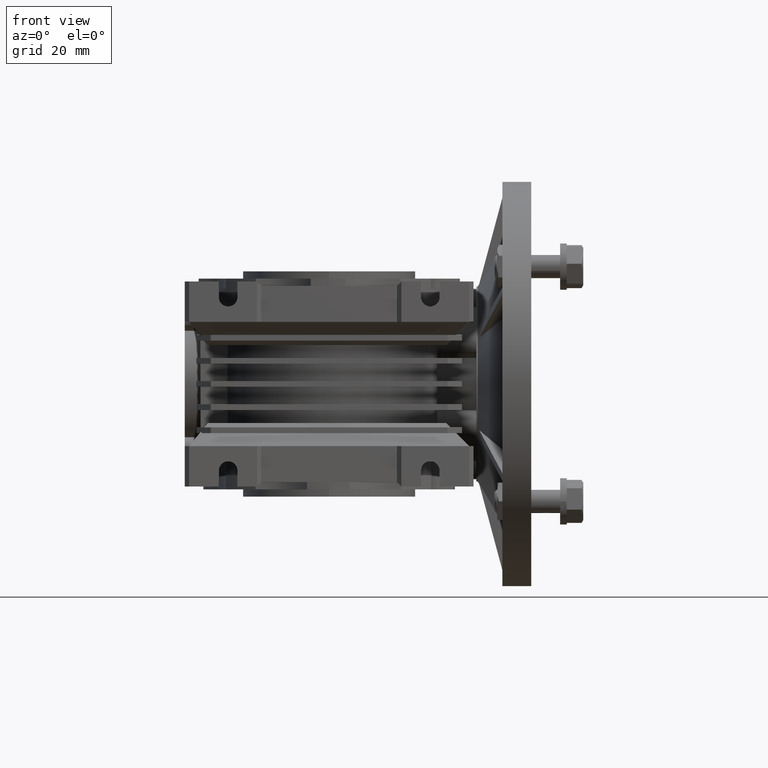
[diagram: clean part render]
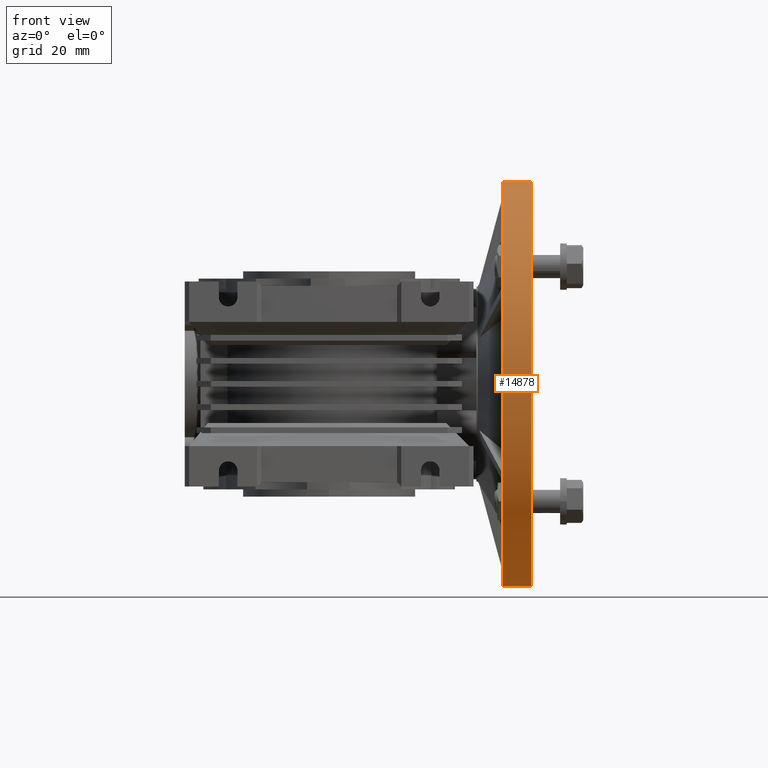
[diagram: same view with one face highlighted and labeled with its STEP entity id]
A machine part, front view. The second image highlights one B-rep face of the part: STEP entity #14878.
In plain terms, the highlighted cylindrical surface (partial cylindrical patch) has radius 70 mm, axis along (-1, 0, 0).
Its self-contained STEP definition (entity closure, byte-faithful):
#1047 = AXIS2_PLACEMENT_3D ( 'NONE', #32243, #3925, #24812 ) ;
#3027 = CARTESIAN_POINT ( 'NONE',  ( 70.00000000000000000, 40.00000000000000000, 0.000000000000000000 ) ) ;
#3747 = CYLINDRICAL_SURFACE ( 'NONE', #1047, 70.00000000000000000 ) ;
#3925 = DIRECTION ( 'NONE',  ( -1.000000000000000000, 0.000000000000000000, 0.000000000000000000 ) ) ;
#4276 = EDGE_CURVE ( 'NONE', #21965, #20514, #22142, .T. ) ;
#7498 = LINE ( 'NONE', #20773, #12746 ) ;
#8524 = CARTESIAN_POINT ( 'NONE',  ( 60.00000000000000000, 40.00000000000000711, -70.00000000000000000 ) ) ;
#10332 = CIRCLE ( 'NONE', #21369, 70.00000000000000000 ) ;
#12034 = EDGE_LOOP ( 'NONE', ( #14698, #32357, #29829, #16464 ) ) ;
#12365 = DIRECTION ( 'NONE',  ( 1.000000000000000000, 0.000000000000000000, 0.000000000000000000 ) ) ;
#12746 = VECTOR ( 'NONE', #23037, 1000.000000000000000 ) ;
#13852 = CARTESIAN_POINT ( 'NONE',  ( 70.00000000000000000, 40.00000000000000711, -70.00000000000000000 ) ) ;
#13921 = EDGE_CURVE ( 'NONE', #21965, #18475, #17064, .T. ) ;
#14698 = ORIENTED_EDGE ( 'NONE', *, *, #4276, .F. ) ;
#14878 = ADVANCED_FACE ( 'NONE', ( #17050 ), #3747, .T. ) ;
#15409 = CARTESIAN_POINT ( 'NONE',  ( 70.00000000000000000, 40.00000000000000000, 70.00000000000000000 ) ) ;
#16464 = ORIENTED_EDGE ( 'NONE', *, *, #16819, .T. ) ;
#16819 = EDGE_CURVE ( 'NONE', #29866, #20514, #10332, .T. ) ;
#17050 = FACE_OUTER_BOUND ( 'NONE', #12034, .T. ) ;
#17064 = CIRCLE ( 'NONE', #25878, 70.00000000000000000 ) ;
#17735 = CARTESIAN_POINT ( 'NONE',  ( 60.00000000000000000, 40.00000000000000000, 70.00000000000000000 ) ) ;
#18475 = VERTEX_POINT ( 'NONE', #15409 ) ;
#20514 = VERTEX_POINT ( 'NONE', #8524 ) ;
#20773 = CARTESIAN_POINT ( 'NONE',  ( 70.00000000000000000, 40.00000000000000000, 70.00000000000000000 ) ) ;
#21254 = CARTESIAN_POINT ( 'NONE',  ( 60.00000000000000000, 40.00000000000000000, 0.000000000000000000 ) ) ;
#21338 = DIRECTION ( 'NONE',  ( -1.000000000000000000, 0.000000000000000000, 0.000000000000000000 ) ) ;
#21369 = AXIS2_PLACEMENT_3D ( 'NONE', #21254, #12365, #30804 ) ;
#21965 = VERTEX_POINT ( 'NONE', #30197 ) ;
#22142 = LINE ( 'NONE', #13852, #31488 ) ;
#23037 = DIRECTION ( 'NONE',  ( -1.000000000000000000, 0.000000000000000000, 0.000000000000000000 ) ) ;
#23400 = EDGE_CURVE ( 'NONE', #18475, #29866, #7498, .T. ) ;
#24812 = DIRECTION ( 'NONE',  ( 0.000000000000000000, 0.000000000000000000, 1.000000000000000000 ) ) ;
#25878 = AXIS2_PLACEMENT_3D ( 'NONE', #3027, #21338, #29264 ) ;
#29264 = DIRECTION ( 'NONE',  ( 0.000000000000000000, 0.000000000000000000, 1.000000000000000000 ) ) ;
#29707 = DIRECTION ( 'NONE',  ( -1.000000000000000000, 0.000000000000000000, 0.000000000000000000 ) ) ;
#29829 = ORIENTED_EDGE ( 'NONE', *, *, #23400, .T. ) ;
#29866 = VERTEX_POINT ( 'NONE', #17735 ) ;
#30197 = CARTESIAN_POINT ( 'NONE',  ( 70.00000000000000000, 40.00000000000000711, -70.00000000000000000 ) ) ;
#30804 = DIRECTION ( 'NONE',  ( 0.000000000000000000, 0.000000000000000000, 1.000000000000000000 ) ) ;
#31488 = VECTOR ( 'NONE', #29707, 1000.000000000000000 ) ;
#32243 = CARTESIAN_POINT ( 'NONE',  ( 70.00000000000000000, 40.00000000000000000, 0.000000000000000000 ) ) ;
#32357 = ORIENTED_EDGE ( 'NONE', *, *, #13921, .T. ) ;